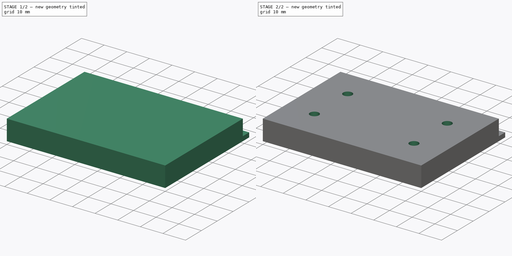
[diagram: build sequence overview — one tinted view per stage of 2, left to right]
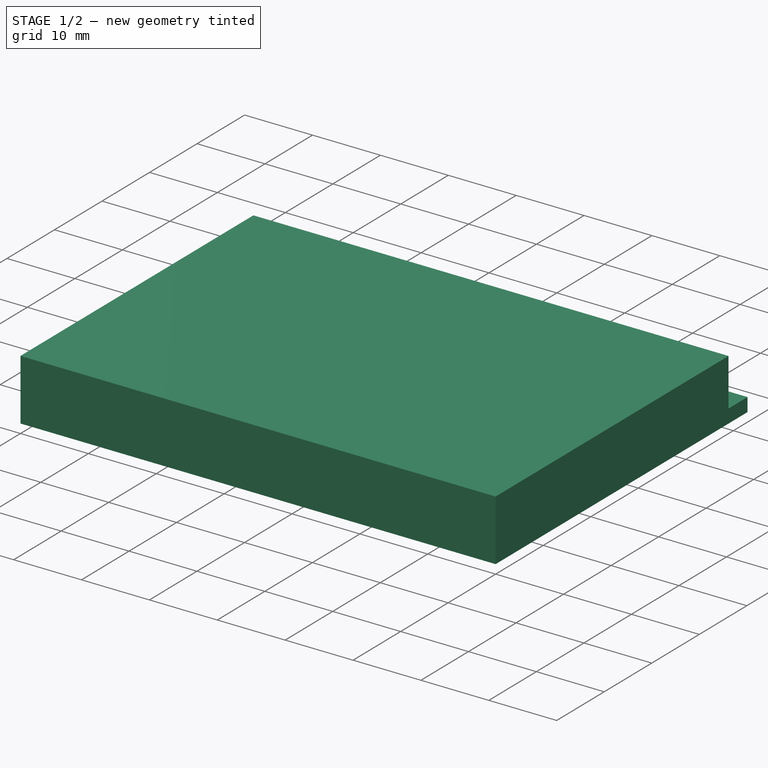
[diagram: stage 1 of 2 — iso view after this stage's code; geometry added in this stage tinted green]
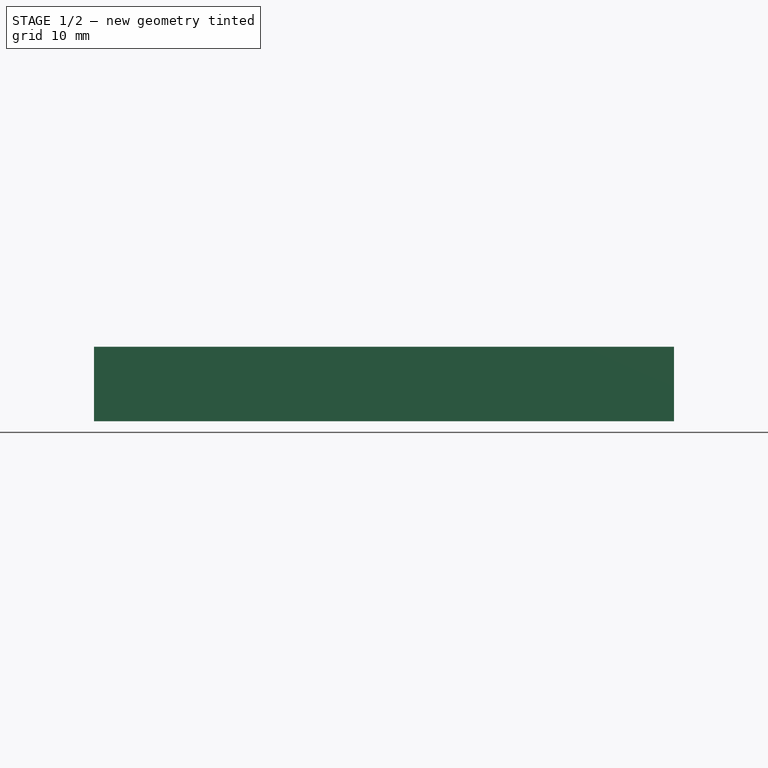
[diagram: stage 1 of 2 — front view after this stage's code; geometry added in this stage tinted green]
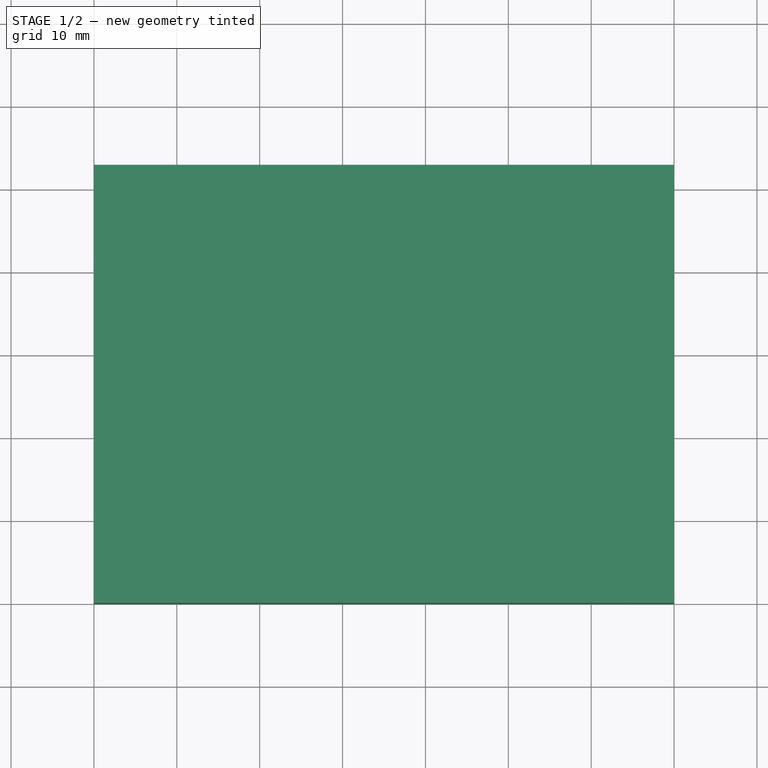
[diagram: stage 1 of 2 — top view after this stage's code; geometry added in this stage tinted green]
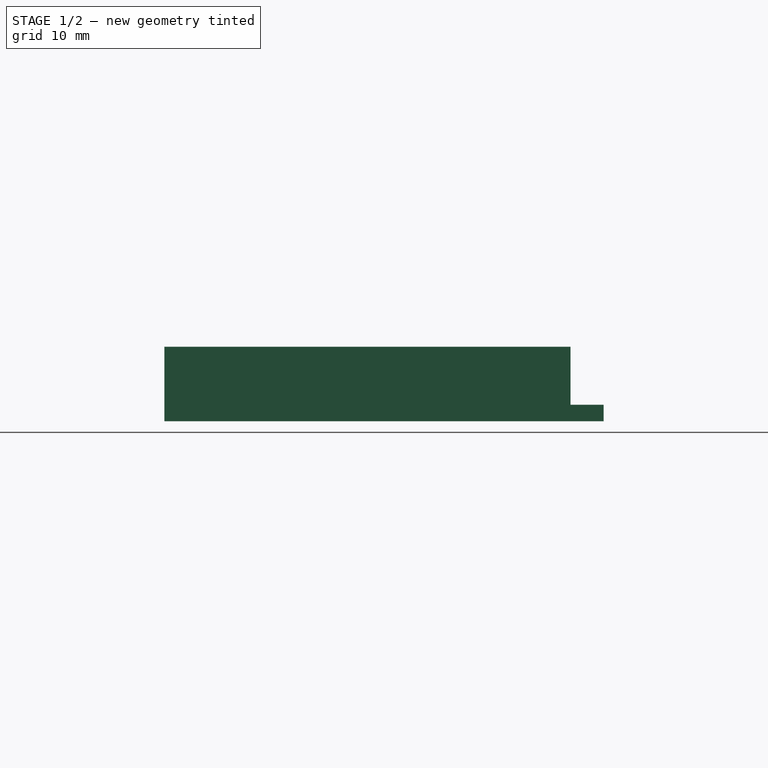
[diagram: stage 1 of 2 — right view after this stage's code; geometry added in this stage tinted green]
FCSTD DOCUMENT  (FreeCAD 0.15R4671 (Git))
Label: lock_support
License: All rights reserved
LicenseURL: http://en.wikipedia.org/wiki/All_rights_reserved
objects: Part::Box×2, Part::MultiFuse×1, Sketcher::SketchObject×1, PartDesign::Pocket×1
note: 6 computed .brp shape members not serialized (recipe doc carries the construction recipe); baked Part::Feature solids carry a one-line shape summary decoded from their .brp

FEATURE [Part::Box] Box  label="Cube"
  Height = 2
  Length = 70
  Width = 53
FEATURE [Part::Box] Box001  label="Cube001"
  Height = 9
  Length = 70
  Width = 49
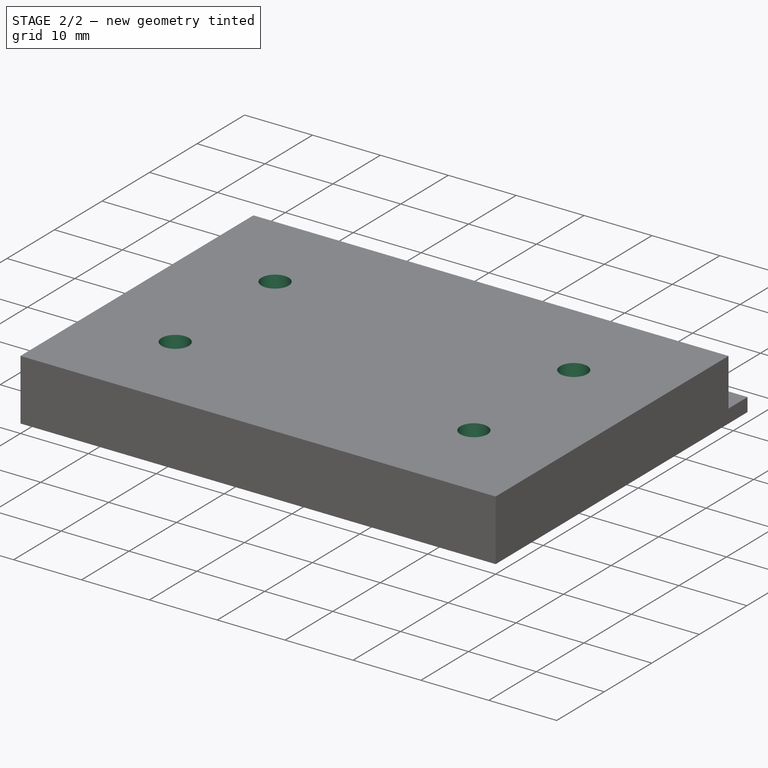
[diagram: stage 2 of 2 — iso view after this stage's code; geometry added in this stage tinted green]
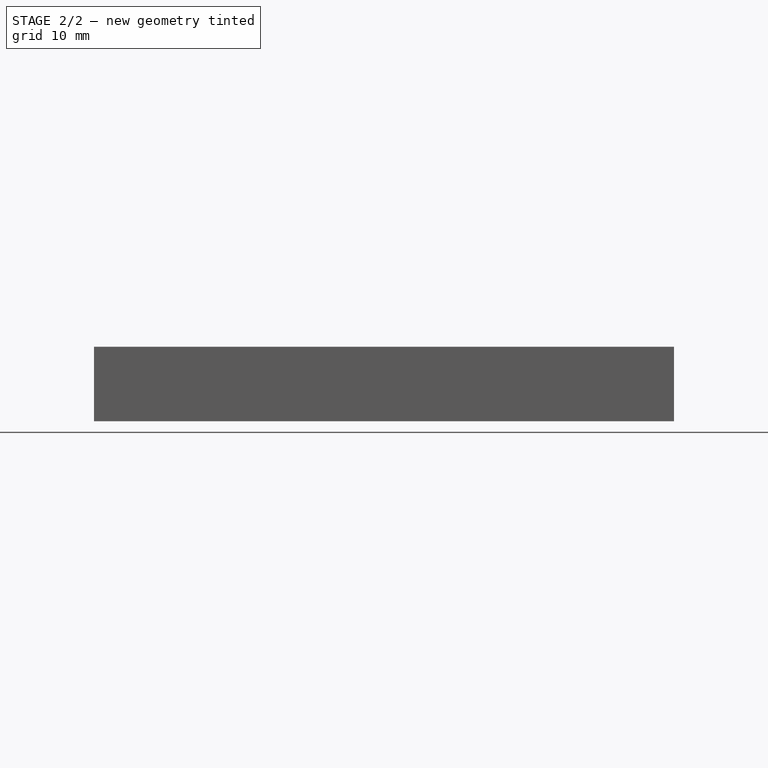
[diagram: stage 2 of 2 — front view after this stage's code; geometry added in this stage tinted green]
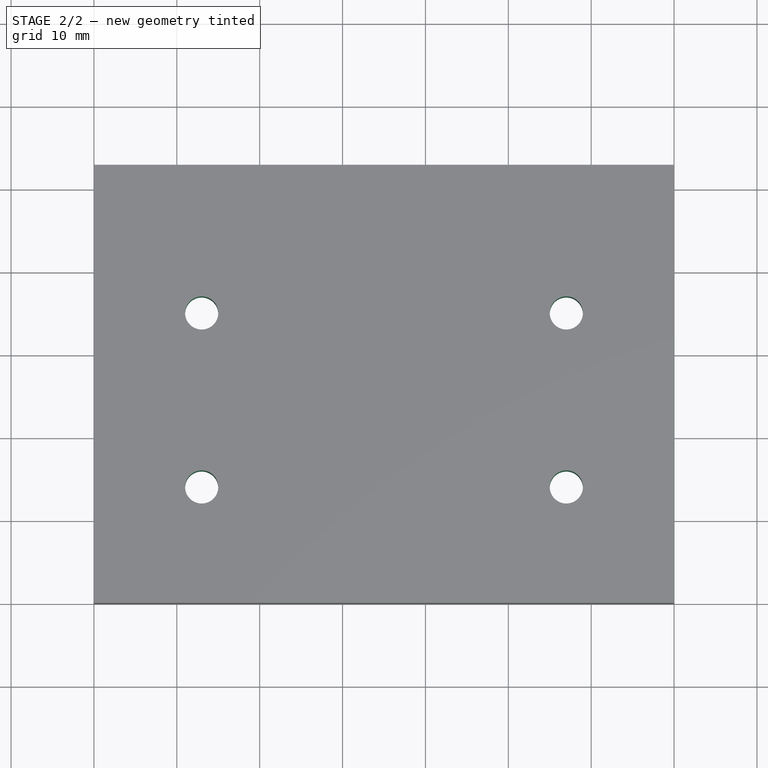
[diagram: stage 2 of 2 — top view after this stage's code; geometry added in this stage tinted green]
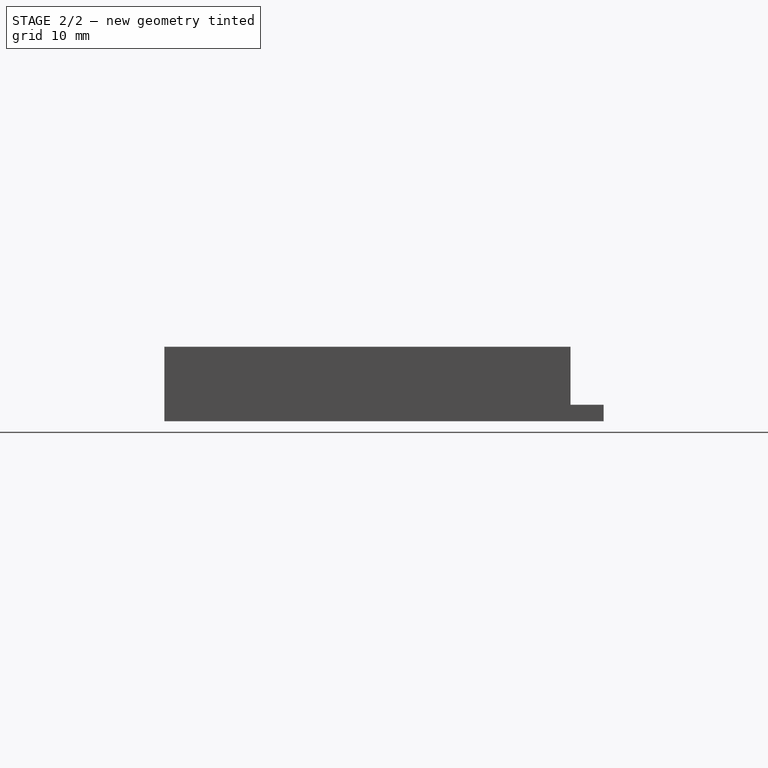
[diagram: stage 2 of 2 — right view after this stage's code; geometry added in this stage tinted green]
FEATURE [Part::MultiFuse] Fusion
  Shapes = -> [Box,Box001]
FEATURE [Sketcher::SketchObject] Sketch
  ExternalGeometry = -> [Fusion]
  Placement = pos=(0,0,9) rot=(0,0,1;0rad)
  Support = -> Fusion [Face4]
  sketch-geometry (8):
    g0: LineSegment [constr] StartX=13 StartY=0 StartZ=0 EndX=13 EndY=49 EndZ=0
    g1: LineSegment [constr] StartX=57 StartY=0 StartZ=0 EndX=57 EndY=49 EndZ=0
    g2: LineSegment [constr] StartX=0 StartY=35 StartZ=0 EndX=69.9573 EndY=35 EndZ=0
    g3: LineSegment [constr] StartX=0 StartY=14 StartZ=0 EndX=70 EndY=14 EndZ=0
    g4: Circle CenterX=13 CenterY=14 CenterZ=0 NormalX=0 NormalY=0 NormalZ=1 Radius=2
    g5: Circle CenterX=13 CenterY=35 CenterZ=0 NormalX=0 NormalY=0 NormalZ=1 Radius=2
    g6: Circle CenterX=57 CenterY=35 CenterZ=0 NormalX=0 NormalY=0 NormalZ=1 Radius=2
    g7: Circle CenterX=57 CenterY=14 CenterZ=0 NormalX=0 NormalY=0 NormalZ=1 Radius=2
  constraints (27):
    c: PointOnObject(g0,g-1)
    c: Vertical(g0)
    c: Vertical(g1)
    c: PointOnObject(g0,g-3)
    c: PointOnObject(g1,g-3)
    c: PointOnObject(g1,g-6)
    c: PointOnObject(g2,g-4)
    c: Horizontal(g2)
    c: PointOnObject(g3,g-4)
    c: Horizontal(g3)
    c: PointOnObject(g3,g-5)
    c: DistanceY(g-5,g2) = -14
    c: DistanceY(g3,g-6) = -14
    c: DistanceX(g-1,g0) = 13
    c: DistanceX(g-6,g1) = -13
    c: PointOnObject(g4,g0)
    c: PointOnObject(g4,g3)
    c: Radius(g4) = 2
    c: PointOnObject(g5,g0)
    c: PointOnObject(g6,g1)
    c: PointOnObject(g7,g1)
    c: Equal(g5,g6)
    c: Equal(g5,g7)
    c: Radius(g5) = 2
    c: PointOnObject(g5,g2)
    c: PointOnObject(g6,g2)
    c: PointOnObject(g7,g3)
FEATURE [PartDesign::Pocket] Pocket
  Length = 5
  Sketch = -> Sketch
  Type = 1
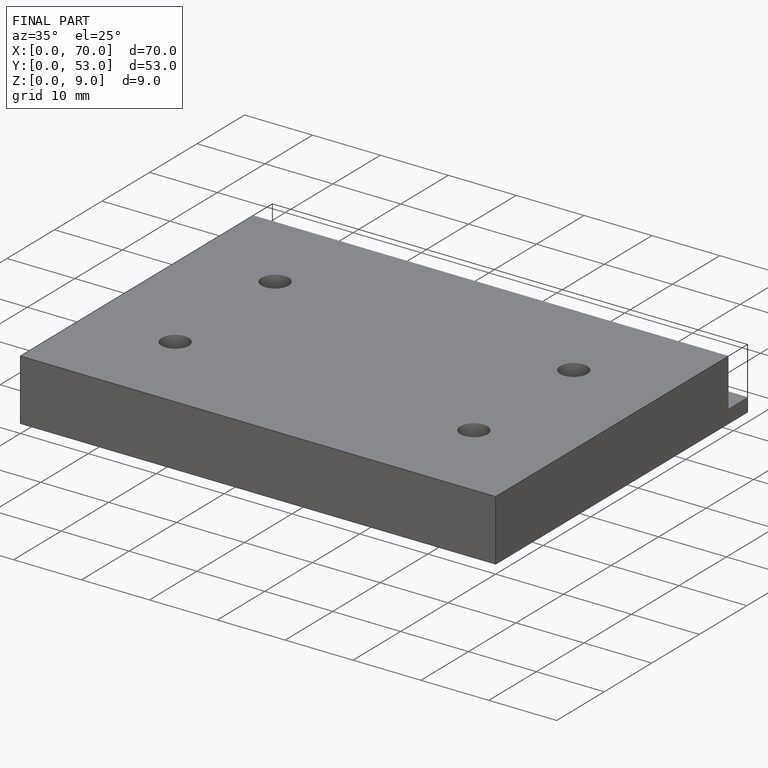
[diagram: finished part — iso view with bounding-box wireframe]
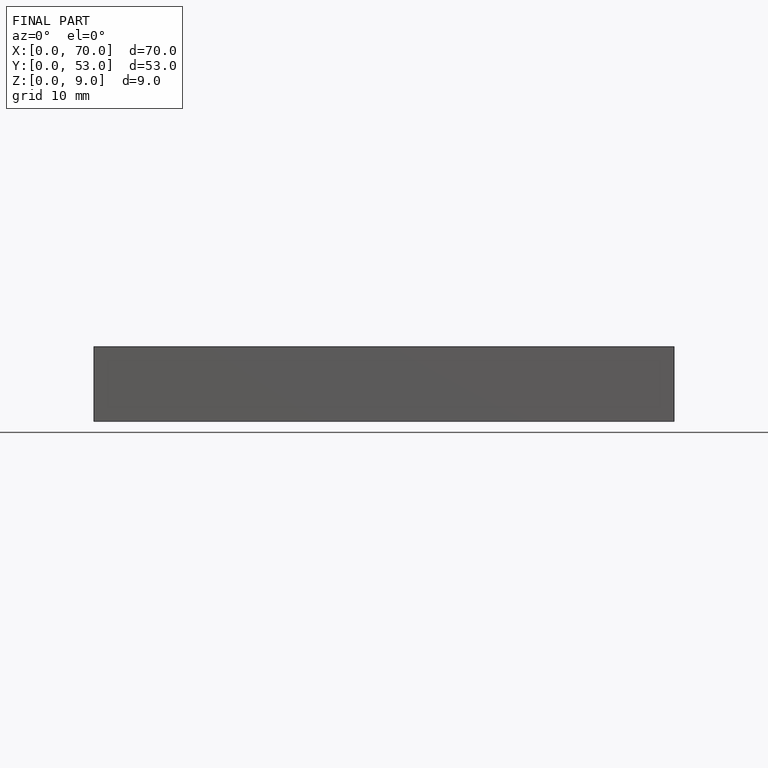
[diagram: finished part — front view with bounding-box wireframe]
